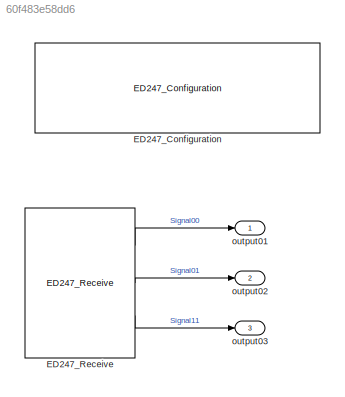
MODEL slx_60f483e58dd6
KIND model
CONFIG AbsTol = auto
CONFIG EnableMultiTasking = off
CONFIG FixedStep = auto
CONFIG MaxStep = auto
CONFIG MinStep = auto
CONFIG RelTol = 1e-3
CONFIG SampleTimeConstraint = Unconstrained
CONFIG Solver = VariableStepAuto
CONFIG SolverName = VariableStepAuto
CONFIG StartTime = 0.0
CONFIG StopTime = 10.0
WORKSPACE source: MAT-file member
WORKSPACE ED247Configuration: struct (value not decoded)
BLOCK [Reference] ED247_Configuration  REF=lib_ed247/ED247_Configuration
  Ports = []
  SourceBlock = lib_ed247/ED247_Configuration
  SourceType = Configurable block example
BLOCK [Reference] ED247_Receive  REF=lib_ed247/ED247_Receive
  Ports = [0, 3]
  SourceBlock = lib_ed247/ED247_Receive
  SourceType = ED247 Receive
BLOCK [Outport] output01
  IconDisplay = Port number
  OutDataTypeStr = uint8
BLOCK [Outport] output02
  IconDisplay = Port number
  OutDataTypeStr = uint8
  Port = 2
BLOCK [Outport] output03
  IconDisplay = Port number
  OutDataTypeStr = single
  Port = 3
  PortDimensions = [2,2]
LINE ED247_Receive:1 -> output01:1
LINE ED247_Receive:2 -> output02:1
LINE ED247_Receive:3 -> output03:1
